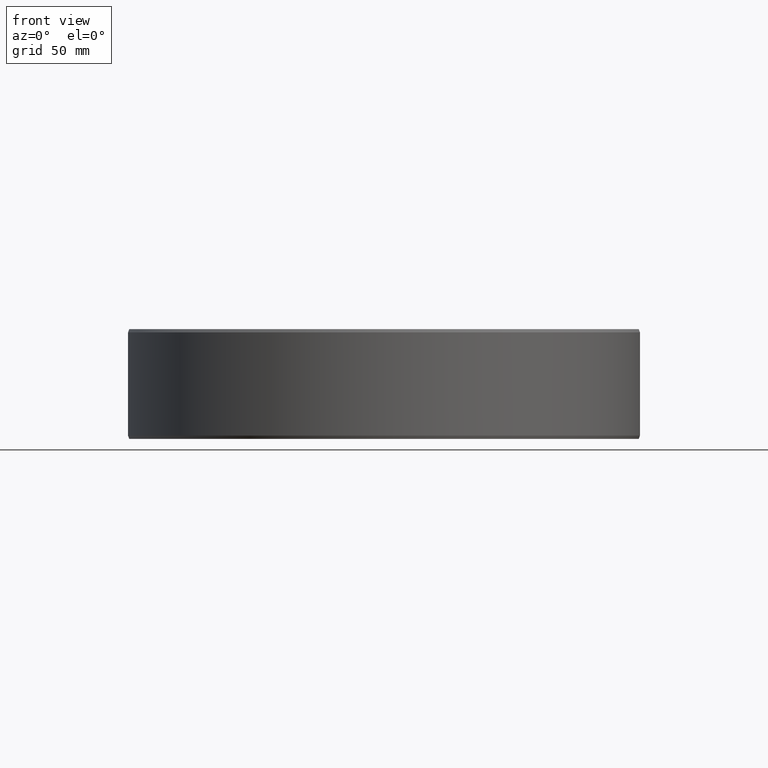
[diagram: clean part render]
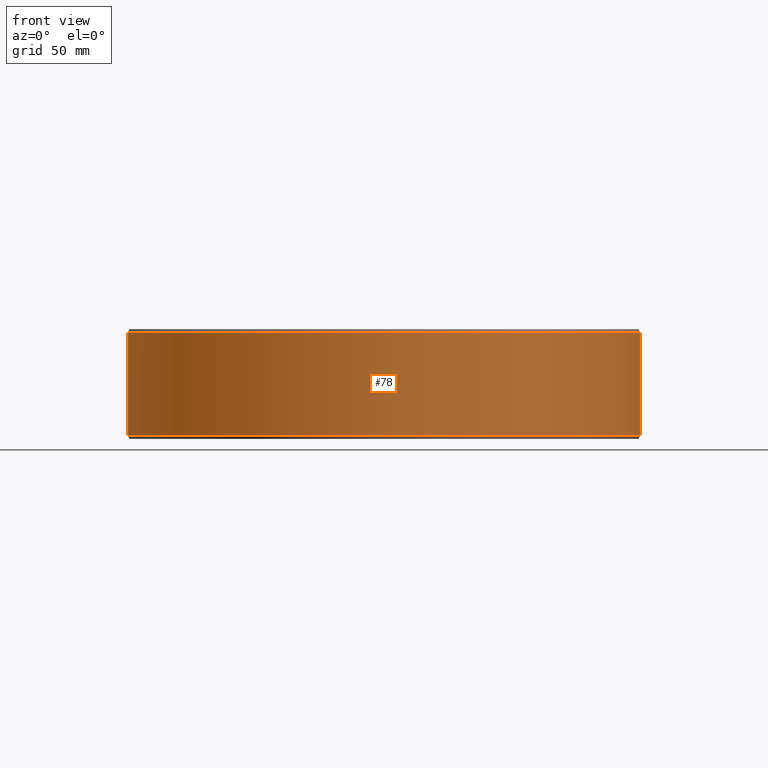
[diagram: same view with one face highlighted and labeled with its STEP entity id]
A machine part, front view. The second image highlights one B-rep face of the part: STEP entity #78.
In plain terms, the highlighted cylindrical surface (partial cylindrical patch) has radius 140 mm, axis along (0, -0, 1).
Its self-contained STEP definition (entity closure, byte-faithful):
#78=ADVANCED_FACE('',(#98),#99,.T.);
#98=FACE_OUTER_BOUND('',#130,.T.);
#99=CYLINDRICAL_SURFACE('',#131,140.0);
#130=EDGE_LOOP('',(#177,#178,#179,#180));
#131=AXIS2_PLACEMENT_3D('',#181,#182,#183);
#177=ORIENTED_EDGE('',*,*,#291,.F.);
#178=ORIENTED_EDGE('',*,*,#290,.F.);
#179=ORIENTED_EDGE('',*,*,#292,.F.);
#180=ORIENTED_EDGE('',*,*,#293,.T.);
#181=CARTESIAN_POINT('',(1.68145218473039E-014,-1.94406054889814E-014,30.0));
#182=DIRECTION('',(5.48707263966375E-016,-6.09939603923743E-016,1.0));
#183=DIRECTION('',(-1.0,1.89882151931499E-015,5.48707263966376E-016));
#290=EDGE_CURVE('',#336,#332,#338,.T.);
#291=EDGE_CURVE('',#332,#339,#340,.T.);
#292=EDGE_CURVE('',#341,#336,#342,.T.);
#293=EDGE_CURVE('',#341,#339,#343,.T.);
#332=VERTEX_POINT('',#398);
#336=VERTEX_POINT('',#403);
#338=CIRCLE('',#406,140.0);
#339=VERTEX_POINT('',#407);
#340=LINE('',#408,#409);
#341=VERTEX_POINT('',#410);
#342=LINE('',#411,#412);
#343=CIRCLE('',#413,140.0);
#398=CARTESIAN_POINT('',(140.0,-3.19620970211792E-013,58.1999999999999));
#403=CARTESIAN_POINT('',(-140.0,2.29009672924984E-013,58.2000000000001));
#406=AXIS2_PLACEMENT_3D('',#482,#483,#484);
#407=CARTESIAN_POINT('',(140.0,-2.84781791594002E-013,1.79999999999993));
#408=CARTESIAN_POINT('',(140.0,-3.02420673381142E-013,29.9999999999999));
#409=VECTOR('',#485,1.0);
#410=CARTESIAN_POINT('',(-140.0,2.64397654711188E-013,1.80000000000008));
#411=CARTESIAN_POINT('',(-140.0,2.64397654711188E-013,1.80000000000008));
#412=VECTOR('',#486,10.0);
#413=AXIS2_PLACEMENT_3D('',#487,#488,#489);
#482=CARTESIAN_POINT('',(3.22880666911556E-014,-3.71345963820835E-014,58.2));
#483=DIRECTION('',(5.48707263966375E-016,-6.09939603923743E-016,1.0));
#484=DIRECTION('',(-1.0,1.89882151931499E-015,5.48707263966376E-016));
#485=DIRECTION('',(-5.48707263966375E-016,6.09939603923743E-016,-1.0));
#486=DIRECTION('',(5.48707263966375E-016,-6.27446485570997E-016,1.0));
#487=CARTESIAN_POINT('',(1.34097700345212E-015,-1.74661459587933E-015,1.80000000000001));
#488=DIRECTION('',(5.48707263966375E-016,-6.09939603923743E-016,1.0));
#489=DIRECTION('',(-1.0,1.89882151931499E-015,5.48707263966376E-016));